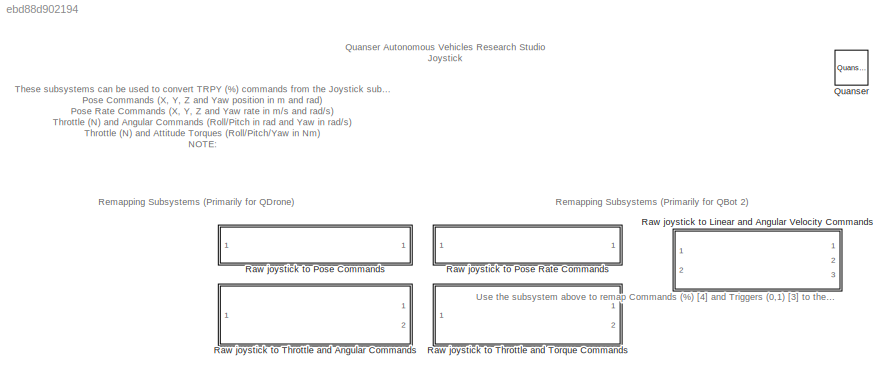
MODEL slx_ebd88d902194
KIND model
CONFIG AbsTol = auto
CONFIG EnableMultiTasking = on
CONFIG FixedStep = 0.001
CONFIG MaxStep = auto
CONFIG MinStep = auto
CONFIG RelTol = 1e-3
CONFIG SampleTimeConstraint = Unconstrained
CONFIG Solver = ode2
CONFIG SolverName = ode2
CONFIG StartTime = 0.0
CONFIG StopTime = inf
WORKSPACE source: MAT-file member
WORKSPACE MCOS: class17 (value not decoded)
BLOCK [Reference] Quanser  REF=quarc_library/Logos/Quanser
  Ports = []
  SourceBlock = quarc_library/Logos/Quanser
  SourceProductName = QUARC Targets
  SourceType = Powered by Quanser
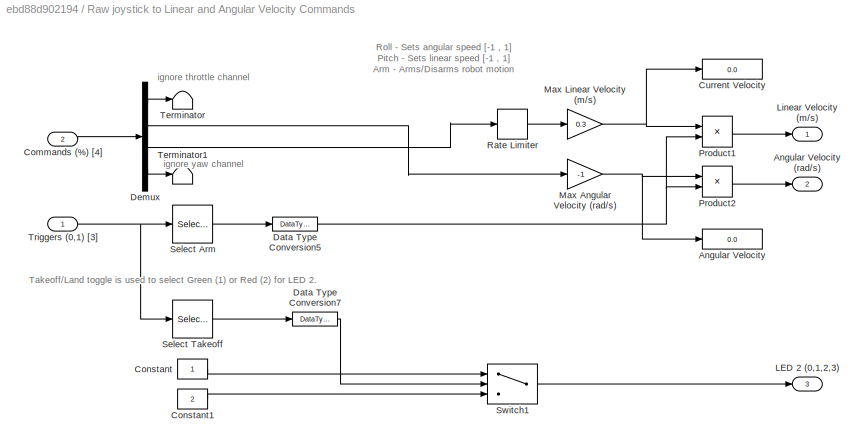
BLOCK [SubSystem] Raw joystick to Linear and Angular Velocity Commands
  Ports = [2, 3]
  RequestExecContextInheritance = off
  Variant = off
BLOCK [Display] Raw joystick to Linear and Angular Velocity Commands/Angular Velocity
  Decimation = 1
  Ports = [1]
BLOCK [Outport] Raw joystick to Linear and Angular Velocity Commands/Angular Velocity (rad//s)
  IconDisplay = Port number
  InitialOutput = 0
  Port = 2
BLOCK [Inport] Raw joystick to Linear and Angular Velocity Commands/Commands (%) [4]
  IconDisplay = Port number
  Port = 2
BLOCK [Constant] Raw joystick to Linear and Angular Velocity Commands/Constant
BLOCK [Constant] Raw joystick to Linear and Angular Velocity Commands/Constant1
  Value = 2
BLOCK [Display] Raw joystick to Linear and Angular Velocity Commands/Current Velocity
  Decimation = 1
  Ports = [1]
BLOCK [DataTypeConversion] Raw joystick to Linear and Angular Velocity Commands/Data Type Conversion5
  RndMeth = Floor
  SaturateOnIntegerOverflow = off
BLOCK [DataTypeConversion] Raw joystick to Linear and Angular Velocity Commands/Data Type Conversion7
  RndMeth = Floor
  SaturateOnIntegerOverflow = off
BLOCK [Demux] Raw joystick to Linear and Angular Velocity Commands/Demux
  DisplayOption = bar
  Ports = [1, 4]
BLOCK [Outport] Raw joystick to Linear and Angular Velocity Commands/LED 2 (0,1,2,3)
  IconDisplay = Port number
  InitialOutput = 0
  Port = 3
BLOCK [Outport] Raw joystick to Linear and Angular Velocity Commands/Linear Velocity (m//s)
  IconDisplay = Port number
  InitialOutput = 0
BLOCK [Gain] Raw joystick to Linear and Angular Velocity Commands/Max Angular Velocity (rad//s)
  Gain = -1
  OutDataTypeStr = Inherit: Inherit via internal rule
  ParamDataTypeStr = Inherit: Inherit via internal rule
  SaturateOnIntegerOverflow = off
BLOCK [Gain] Raw joystick to Linear and Angular Velocity Commands/Max Linear Velocity (m//s)
  Gain = 0.3
  OutDataTypeStr = Inherit: Inherit via internal rule
  ParamDataTypeStr = Inherit: Inherit via internal rule
  SaturateOnIntegerOverflow = off
BLOCK [Product] Raw joystick to Linear and Angular Velocity Commands/Product1
  InputSameDT = off
  OutDataTypeStr = Inherit: Inherit via internal rule
  Ports = [2, 1]
  RndMeth = Floor
  SaturateOnIntegerOverflow = off
BLOCK [Product] Raw joystick to Linear and Angular Velocity Commands/Product2
  InputSameDT = off
  OutDataTypeStr = Inherit: Inherit via internal rule
  Ports = [2, 1]
  RndMeth = Floor
  SaturateOnIntegerOverflow = off
BLOCK [RateLimiter] Raw joystick to Linear and Angular Velocity Commands/Rate Limiter
  FallingSlewLimit = -2
  RisingSlewLimit = 2
  SampleTimeMode = inherited
BLOCK [Selector] Raw joystick to Linear and Angular Velocity Commands/Select Arm
  IndexOptions = Index vector (dialog)
  Indices = [1]
  InputPortWidth = 3
  OutputSizes = 1
  Ports = [1, 1]
BLOCK [Selector] Raw joystick to Linear and Angular Velocity Commands/Select Takeoff
  IndexOptions = Index vector (dialog)
  Indices = [2]
  InputPortWidth = 3
  OutputSizes = 1
  Ports = [1, 1]
BLOCK [Switch] Raw joystick to Linear and Angular Velocity Commands/Switch1
  Criteria = u2 > Threshold
  InputSameDT = off
  SaturateOnIntegerOverflow = off
  Threshold = 0.5
BLOCK [Terminator] Raw joystick to Linear and Angular Velocity Commands/Terminator
BLOCK [Terminator] Raw joystick to Linear and Angular Velocity Commands/Terminator1
BLOCK [Inport] Raw joystick to Linear and Angular Velocity Commands/Triggers (0,1) [3]
  IconDisplay = Port number
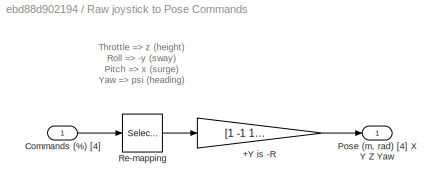
BLOCK [SubSystem] Raw joystick to Pose Commands
  Ports = [1, 1]
  RequestExecContextInheritance = off
  Variant = off
BLOCK [Gain] Raw joystick to Pose Commands/+Y is -R
  Gain = [1 -1 1 1]
  OutDataTypeStr = Inherit: Inherit via internal rule
  ParamDataTypeStr = Inherit: Inherit via internal rule
  SaturateOnIntegerOverflow = off
BLOCK [Inport] Raw joystick to Pose Commands/Commands (%) [4]
  IconDisplay = Port number
BLOCK [Outport] Raw joystick to Pose Commands/Pose (m, rad) [4] X Y Z Yaw
  IconDisplay = Port number
BLOCK [Selector] Raw joystick to Pose Commands/Re-mapping
  IndexOptions = Index vector (dialog)
  Indices = [3 2 1 4]
  InputPortWidth = 4
  OutputSizes = 1
  Ports = [1, 1]
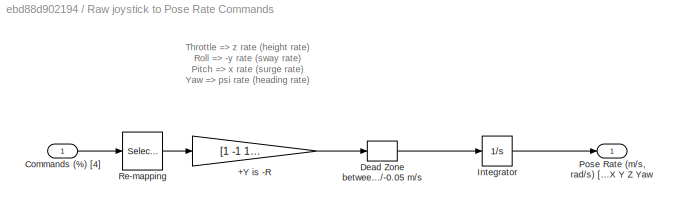
BLOCK [SubSystem] Raw joystick to Pose Rate Commands
  Ports = [1, 1]
  RequestExecContextInheritance = off
  Variant = off
BLOCK [Gain] Raw joystick to Pose Rate Commands/+Y is -R
  Gain = [1 -1 1 1]
  OutDataTypeStr = Inherit: Inherit via internal rule
  ParamDataTypeStr = Inherit: Inherit via internal rule
  SaturateOnIntegerOverflow = off
BLOCK [Inport] Raw joystick to Pose Rate Commands/Commands (%) [4]
  IconDisplay = Port number
BLOCK [DeadZone] Raw joystick to Pose Rate Commands/Dead Zone between +//-0.05 m//s
  LowerValue = -0.05
  UpperValue = 0.05
BLOCK [Integrator] Raw joystick to Pose Rate Commands/Integrator
  Ports = [1, 1]
BLOCK [Outport] Raw joystick to Pose Rate Commands/Pose Rate (m//s, rad//s) [4] X Y Z Yaw
  IconDisplay = Port number
BLOCK [Selector] Raw joystick to Pose Rate Commands/Re-mapping
  IndexOptions = Index vector (dialog)
  Indices = [3 2 1 4]
  InputPortWidth = 4
  OutputSizes = 1
  Ports = [1, 1]
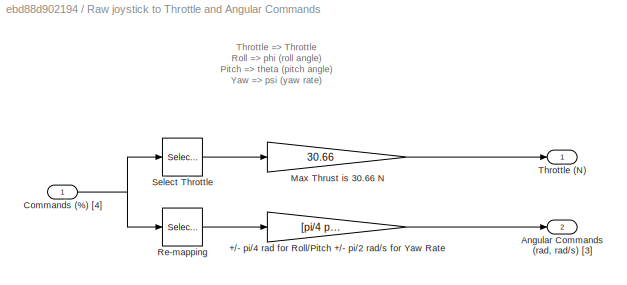
BLOCK [SubSystem] Raw joystick to Throttle and Angular Commands
  Ports = [1, 2]
  RequestExecContextInheritance = off
  Variant = off
BLOCK [Gain] Raw joystick to Throttle and Angular Commands/+//- pi//4 rad for Roll//Pitch +//- pi//2 rad//s for Yaw Rate
  Gain = [pi/4 pi/4 pi/2]
  OutDataTypeStr = Inherit: Inherit via internal rule
  ParamDataTypeStr = Inherit: Inherit via internal rule
  SaturateOnIntegerOverflow = off
BLOCK [Outport] Raw joystick to Throttle and Angular Commands/Angular Commands (rad, rad//s) [3]
  IconDisplay = Port number
  Port = 2
BLOCK [Inport] Raw joystick to Throttle and Angular Commands/Commands (%) [4]
  IconDisplay = Port number
BLOCK [Gain] Raw joystick to Throttle and Angular Commands/Max Thrust is 30.66 N
  Gain = 30.66
  OutDataTypeStr = Inherit: Inherit via internal rule
  ParamDataTypeStr = Inherit: Inherit via internal rule
  SaturateOnIntegerOverflow = off
BLOCK [Selector] Raw joystick to Throttle and Angular Commands/Re-mapping
  IndexOptions = Index vector (dialog)
  Indices = [2 3 4]
  InputPortWidth = 4
  OutputSizes = 1
  Ports = [1, 1]
BLOCK [Selector] Raw joystick to Throttle and Angular Commands/Select Throttle
  IndexOptions = Index vector (dialog)
  Indices = [1]
  InputPortWidth = 4
  OutputSizes = 1
  Ports = [1, 1]
BLOCK [Outport] Raw joystick to Throttle and Angular Commands/Throttle (N)
  IconDisplay = Port number
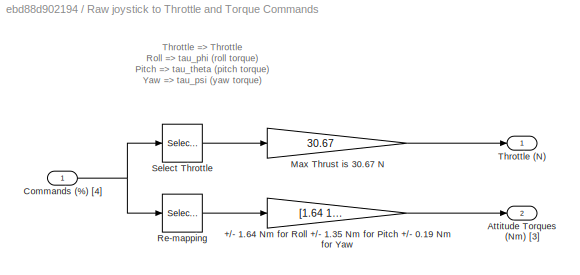
BLOCK [SubSystem] Raw joystick to Throttle and Torque Commands
  Ports = [1, 2]
  RequestExecContextInheritance = off
  Variant = off
BLOCK [Gain] Raw joystick to Throttle and Torque Commands/+//- 1.64 Nm for Roll +//- 1.35 Nm for Pitch +//- 0.19 Nm for Yaw
  Gain = [1.64 1.35 0.19]
  OutDataTypeStr = Inherit: Inherit via internal rule
  ParamDataTypeStr = Inherit: Inherit via internal rule
  SaturateOnIntegerOverflow = off
BLOCK [Outport] Raw joystick to Throttle and Torque Commands/Attitude Torques (Nm) [3]
  IconDisplay = Port number
  Port = 2
BLOCK [Inport] Raw joystick to Throttle and Torque Commands/Commands (%) [4]
  IconDisplay = Port number
BLOCK [Gain] Raw joystick to Throttle and Torque Commands/Max Thrust is 30.67 N
  Gain = 30.67
  OutDataTypeStr = Inherit: Inherit via internal rule
  ParamDataTypeStr = Inherit: Inherit via internal rule
  SaturateOnIntegerOverflow = off
BLOCK [Selector] Raw joystick to Throttle and Torque Commands/Re-mapping
  IndexOptions = Index vector (dialog)
  Indices = [2 3 4]
  InputPortWidth = 4
  OutputSizes = 1
  Ports = [1, 1]
BLOCK [Selector] Raw joystick to Throttle and Torque Commands/Select Throttle
  IndexOptions = Index vector (dialog)
  Indices = [1]
  InputPortWidth = 4
  OutputSizes = 1
  Ports = [1, 1]
BLOCK [Outport] Raw joystick to Throttle and Torque Commands/Throttle (N)
  IconDisplay = Port number
ANNOTATION (root): These subsystems can be used to convert TRPY (%) commands from the Joystick subsystem to standard types of commands for the QDrone. Use these subsystems to remap the joystick commands to one of the following: Pose Commands (X, Y, Z and Yaw position in m and rad) Pose Rate Commands (X, Y, Z and Yaw rate in m/s and rad/s) Throttle (N) and Angular Commands (Roll/Pitch in rad and Yaw in rad/s) Throttl...<+449ch>
ANNOTATION (root): Use the subsystem above to remap Commands (%) [4] and Triggers (0,1) [3] to the Linear and Angular Velocity commands, as well as LED command expected by the Stabilizer module for the QBot 2.
ANNOTATION (root): Quanser Autonomous Vehicles Research Studio Joystick
ANNOTATION (root): Remapping Subsystems (Primarily for QBot 2)
ANNOTATION (root): Remapping Subsystems (Primarily for QDrone)
ANNOTATION Raw joystick to Linear and Angular Velocity Commands: Roll - Sets angular speed [-1 , 1] Pitch - Sets linear speed [-1 , 1] Arm - Arms/Disarms robot motion
ANNOTATION Raw joystick to Linear and Angular Velocity Commands: Takeoff/Land toggle is used to select Green (1) or Red (2) for LED 2.
ANNOTATION Raw joystick to Linear and Angular Velocity Commands: ignore throttle channel
ANNOTATION Raw joystick to Linear and Angular Velocity Commands: ignore yaw channel
ANNOTATION Raw joystick to Pose Commands: Throttle => z (height) Roll => -y (sway) Pitch => x (surge) Yaw => psi (heading)
ANNOTATION Raw joystick to Pose Rate Commands: Throttle => z rate (height rate) Roll => -y rate (sway rate) Pitch => x rate (surge rate) Yaw => psi rate (heading rate)
ANNOTATION Raw joystick to Throttle and Angular Commands: Throttle => Throttle Roll => phi (roll angle) Pitch => theta (pitch angle) Yaw => psi (yaw rate)
ANNOTATION Raw joystick to Throttle and Torque Commands: Throttle => Throttle Roll => tau_phi (roll torque) Pitch => tau_theta (pitch torque) Yaw => tau_psi (yaw torque)
LINE Raw joystick to Linear and Angular Velocity Commands/Commands (%) [4]:1 -> Raw joystick to Linear and Angular Velocity Commands/Demux:1
LINE Raw joystick to Linear and Angular Velocity Commands/Constant1:1 -> Raw joystick to Linear and Angular Velocity Commands/Switch1:3
LINE Raw joystick to Linear and Angular Velocity Commands/Constant:1 -> Raw joystick to Linear and Angular Velocity Commands/Switch1:1
NET Raw joystick to Linear and Angular Velocity Commands/Data Type Conversion5:1 -> Raw joystick to Linear and Angular Velocity Commands/Product1:2, Raw joystick to Linear and Angular Velocity Commands/Product2:2
LINE Raw joystick to Linear and Angular Velocity Commands/Data Type Conversion7:1 -> Raw joystick to Linear and Angular Velocity Commands/Switch1:2
LINE Raw joystick to Linear and Angular Velocity Commands/Demux:1 -> Raw joystick to Linear and Angular Velocity Commands/Terminator:1
LINE Raw joystick to Linear and Angular Velocity Commands/Demux:2 -> Raw joystick to Linear and Angular Velocity Commands/Max Angular Velocity (rad//s):1
LINE Raw joystick to Linear and Angular Velocity Commands/Demux:3 -> Raw joystick to Linear and Angular Velocity Commands/Rate Limiter:1
LINE Raw joystick to Linear and Angular Velocity Commands/Demux:4 -> Raw joystick to Linear and Angular Velocity Commands/Terminator1:1
NET Raw joystick to Linear and Angular Velocity Commands/Max Angular Velocity (rad//s):1 -> Raw joystick to Linear and Angular Velocity Commands/Angular Velocity:1, Raw joystick to Linear and Angular Velocity Commands/Product2:1
NET Raw joystick to Linear and Angular Velocity Commands/Max Linear Velocity (m//s):1 -> Raw joystick to Linear and Angular Velocity Commands/Current Velocity:1, Raw joystick to Linear and Angular Velocity Commands/Product1:1
LINE Raw joystick to Linear and Angular Velocity Commands/Product1:1 -> Raw joystick to Linear and Angular Velocity Commands/Linear Velocity (m//s):1
LINE Raw joystick to Linear and Angular Velocity Commands/Product2:1 -> Raw joystick to Linear and Angular Velocity Commands/Angular Velocity (rad//s):1
LINE Raw joystick to Linear and Angular Velocity Commands/Rate Limiter:1 -> Raw joystick to Linear and Angular Velocity Commands/Max Linear Velocity (m//s):1
LINE Raw joystick to Linear and Angular Velocity Commands/Select Arm:1 -> Raw joystick to Linear and Angular Velocity Commands/Data Type Conversion5:1
LINE Raw joystick to Linear and Angular Velocity Commands/Select Takeoff:1 -> Raw joystick to Linear and Angular Velocity Commands/Data Type Conversion7:1
LINE Raw joystick to Linear and Angular Velocity Commands/Switch1:1 -> Raw joystick to Linear and Angular Velocity Commands/LED 2 (0,1,2,3):1
NET Raw joystick to Linear and Angular Velocity Commands/Triggers (0,1) [3]:1 -> Raw joystick to Linear and Angular Velocity Commands/Select Arm:1, Raw joystick to Linear and Angular Velocity Commands/Select Takeoff:1
LINE Raw joystick to Pose Commands/+Y is -R:1 -> Raw joystick to Pose Commands/Pose (m, rad) [4] X Y Z Yaw:1
LINE Raw joystick to Pose Commands/Commands (%) [4]:1 -> Raw joystick to Pose Commands/Re-mapping:1
LINE Raw joystick to Pose Commands/Re-mapping:1 -> Raw joystick to Pose Commands/+Y is -R:1
LINE Raw joystick to Pose Rate Commands/+Y is -R:1 -> Raw joystick to Pose Rate Commands/Dead Zone between +//-0.05 m//s:1
LINE Raw joystick to Pose Rate Commands/Commands (%) [4]:1 -> Raw joystick to Pose Rate Commands/Re-mapping:1
LINE Raw joystick to Pose Rate Commands/Dead Zone between +//-0.05 m//s:1 -> Raw joystick to Pose Rate Commands/Integrator:1
LINE Raw joystick to Pose Rate Commands/Integrator:1 -> Raw joystick to Pose Rate Commands/Pose Rate (m//s, rad//s) [4] X Y Z Yaw:1
LINE Raw joystick to Pose Rate Commands/Re-mapping:1 -> Raw joystick to Pose Rate Commands/+Y is -R:1
LINE Raw joystick to Throttle and Angular Commands/+//- pi//4 rad for Roll//Pitch +//- pi//2 rad//s for Yaw Rate:1 -> Raw joystick to Throttle and Angular Commands/Angular Commands (rad, rad//s) [3]:1
NET Raw joystick to Throttle and Angular Commands/Commands (%) [4]:1 -> Raw joystick to Throttle and Angular Commands/Re-mapping:1, Raw joystick to Throttle and Angular Commands/Select Throttle:1
LINE Raw joystick to Throttle and Angular Commands/Max Thrust is 30.66 N:1 -> Raw joystick to Throttle and Angular Commands/Throttle (N):1
LINE Raw joystick to Throttle and Angular Commands/Re-mapping:1 -> Raw joystick to Throttle and Angular Commands/+//- pi//4 rad for Roll//Pitch +//- pi//2 rad//s for Yaw Rate:1
LINE Raw joystick to Throttle and Angular Commands/Select Throttle:1 -> Raw joystick to Throttle and Angular Commands/Max Thrust is 30.66 N:1
LINE Raw joystick to Throttle and Torque Commands/+//- 1.64 Nm for Roll +//- 1.35 Nm for Pitch +//- 0.19 Nm for Yaw:1 -> Raw joystick to Throttle and Torque Commands/Attitude Torques (Nm) [3]:1
NET Raw joystick to Throttle and Torque Commands/Commands (%) [4]:1 -> Raw joystick to Throttle and Torque Commands/Re-mapping:1, Raw joystick to Throttle and Torque Commands/Select Throttle:1
LINE Raw joystick to Throttle and Torque Commands/Max Thrust is 30.67 N:1 -> Raw joystick to Throttle and Torque Commands/Throttle (N):1
LINE Raw joystick to Throttle and Torque Commands/Re-mapping:1 -> Raw joystick to Throttle and Torque Commands/+//- 1.64 Nm for Roll +//- 1.35 Nm for Pitch +//- 0.19 Nm for Yaw:1
LINE Raw joystick to Throttle and Torque Commands/Select Throttle:1 -> Raw joystick to Throttle and Torque Commands/Max Thrust is 30.67 N:1
note: NET lines group one-source signal fan-out (src -> all destinations, sorted); 1:1 wires keep LINE
